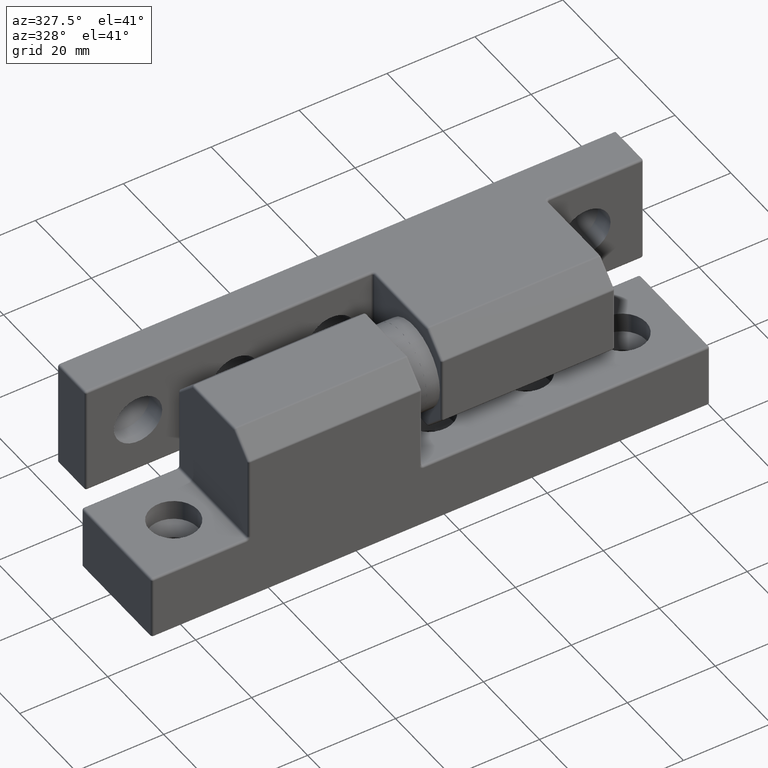
[diagram: clean part render]
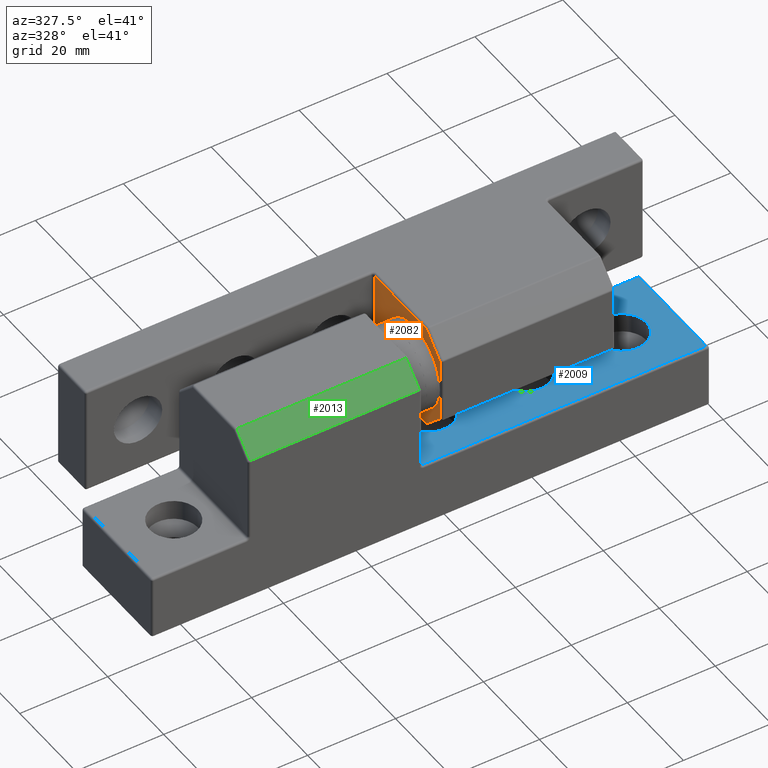
[diagram: same view with three faces highlighted in distinct colors, each labeled with its STEP entity id]
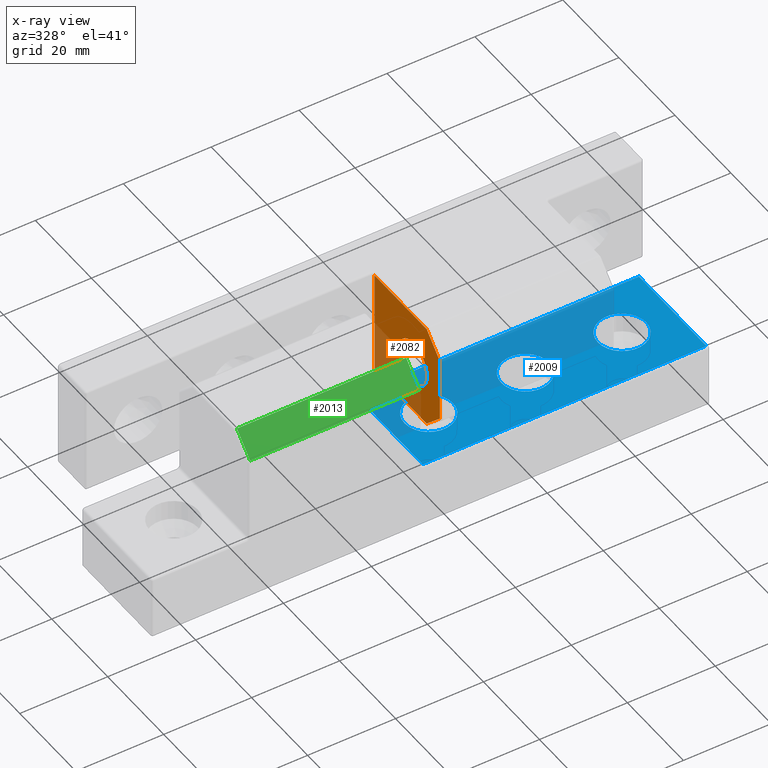
[diagram: x-ray of the same camera — body ghosted, the three highlighted faces saturated]
A machine part, auxiliary view with three faces highlighted in distinct colors.
The next image is the same camera in x-ray (body ghosted, the three faces saturated) — at least one of them is partly hidden behind the body in this view.
Their STEP definitions:

[orange] entity #2082 — the highlighted planar face has unit normal (-1, 0, -0).
#82=FACE_BOUND('',#744,.T.);
#123=PLANE('',#2379);
#210=LINE('',#3544,#322);
#219=LINE('',#3599,#331);
#228=LINE('',#3643,#340);
#230=LINE('',#3646,#342);
#238=LINE('',#3658,#350);
#248=LINE('',#3673,#360);
#322=VECTOR('',#2880,18.5928932188135);
#331=VECTOR('',#2943,24.);
#340=VECTOR('',#2996,18.5928932188134);
#342=VECTOR('',#3000,6.6568542494924);
#350=VECTOR('',#3016,14.5857864376269);
#360=VECTOR('',#3036,6.65685424949235);
#561=FACE_OUTER_BOUND('',#743,.T.);
#743=EDGE_LOOP('',(#1853,#1854,#1855,#1856,#1857,#1858));
#744=EDGE_LOOP('',(#1859));
#937=CIRCLE('',#2380,5.);
#1044=VERTEX_POINT('',#3483);
#1055=VERTEX_POINT('',#3510);
#1063=VERTEX_POINT('',#3533);
#1079=VERTEX_POINT('',#3580);
#1084=VERTEX_POINT('',#3591);
#1093=VERTEX_POINT('',#3621);
#1105=VERTEX_POINT('',#3701);
#1293=EDGE_CURVE('',#1044,#1063,#210,.T.);
#1320=EDGE_CURVE('',#1063,#1084,#219,.T.);
#1342=EDGE_CURVE('',#1084,#1093,#228,.T.);
#1344=EDGE_CURVE('',#1093,#1079,#230,.T.);
#1352=EDGE_CURVE('',#1079,#1055,#238,.T.);
#1362=EDGE_CURVE('',#1055,#1044,#248,.T.);
#1377=EDGE_CURVE('',#1105,#1105,#937,.T.);
#1853=ORIENTED_EDGE('',*,*,#1293,.F.);
#1854=ORIENTED_EDGE('',*,*,#1362,.F.);
#1855=ORIENTED_EDGE('',*,*,#1352,.F.);
#1856=ORIENTED_EDGE('',*,*,#1344,.F.);
#1857=ORIENTED_EDGE('',*,*,#1342,.F.);
#1858=ORIENTED_EDGE('',*,*,#1320,.F.);
#1859=ORIENTED_EDGE('',*,*,#1377,.T.);
#2082=ADVANCED_FACE('',(#561,#82),#123,.T.);
#2379=AXIS2_PLACEMENT_3D('',#3700,#3068,#3069);
#2380=AXIS2_PLACEMENT_3D('',#3702,#3070,#3071);
#2880=DIRECTION('',(0.,0.,-1.));
#2943=DIRECTION('',(3.5527136788005E-16,-1.,0.));
#2996=DIRECTION('',(0.,0.,1.));
#3000=DIRECTION('',(-2.51214793389404E-16,0.707106781186548,0.707106781186547));
#3016=DIRECTION('',(-3.5527136788005E-16,1.,0.));
#3036=DIRECTION('',(-2.51214793389404E-16,0.707106781186548,-0.707106781186548));
#3068=DIRECTION('center_axis',(1.,3.5527136788005E-16,0.));
#3069=DIRECTION('ref_axis',(0.,0.,-1.));
#3070=DIRECTION('center_axis',(-1.,-3.5527136788005E-16,0.));
#3071=DIRECTION('ref_axis',(0.,0.,1.));
#3483=CARTESIAN_POINT('',(-1.99999999999999,12.,28.7928932188135));
#3510=CARTESIAN_POINT('',(-1.99999999999999,7.29289321881347,33.5));
#3533=CARTESIAN_POINT('',(-1.99999999999999,12.,10.2));
#3544=CARTESIAN_POINT('',(-1.99999999999999,12.,10.4854565784329));
#3580=CARTESIAN_POINT('',(-1.99999999999998,-7.29289321881343,33.5));
#3591=CARTESIAN_POINT('',(-1.99999999999998,-12.,10.2));
#3599=CARTESIAN_POINT('',(-1.99999999999998,8.87308832615225E-15,10.2));
#3621=CARTESIAN_POINT('',(-1.99999999999998,-12.,28.7928932188134));
#3643=CARTESIAN_POINT('',(-1.99999999999998,-12.,10.4854565784329));
#3646=CARTESIAN_POINT('',(-1.99999999999998,-8.52871832019027,32.2641748986232));
#3658=CARTESIAN_POINT('',(-1.99999999999999,3.75000000000002,33.5));
#3673=CARTESIAN_POINT('',(-1.99999999999999,11.0287183201903,29.7641748986232));
#3700=CARTESIAN_POINT('Origin',(-1.99999999999998,2.06771654373149E-14,
20.9709131568657));
#3701=CARTESIAN_POINT('',(-1.99999999999998,-1.83758917935762E-14,19.));
#3702=CARTESIAN_POINT('Origin',(-1.99999999999998,-1.77635683940025E-14,
24.));

[blue] entity #2009 — the highlighted planar face has unit normal (0, 0, 1).
#53=FACE_BOUND('',#642,.T.);
#54=FACE_BOUND('',#643,.T.);
#55=FACE_BOUND('',#644,.T.);
#107=PLANE('',#2224);
#150=LINE('',#3240,#262);
#152=LINE('',#3252,#264);
#160=LINE('',#3306,#272);
#162=LINE('',#3309,#274);
#262=VECTOR('',#2504,24.);
#264=VECTOR('',#2518,64.5);
#272=VECTOR('',#2580,64.5);
#274=VECTOR('',#2584,24.);
#488=FACE_OUTER_BOUND('',#641,.T.);
#641=EDGE_LOOP('',(#1578,#1579,#1580,#1581));
#642=EDGE_LOOP('',(#1582));
#643=EDGE_LOOP('',(#1583));
#644=EDGE_LOOP('',(#1584));
#856=CIRCLE('',#2225,5.5);
#857=CIRCLE('',#2226,5.5);
#858=CIRCLE('',#2227,5.5);
#957=VERTEX_POINT('',#3181);
#976=VERTEX_POINT('',#3228);
#980=VERTEX_POINT('',#3243);
#1001=VERTEX_POINT('',#3300);
#1020=VERTEX_POINT('',#3405);
#1021=VERTEX_POINT('',#3407);
#1022=VERTEX_POINT('',#3409);
#1151=EDGE_CURVE('',#957,#976,#150,.T.);
#1157=EDGE_CURVE('',#980,#957,#152,.T.);
#1183=EDGE_CURVE('',#976,#1001,#160,.T.);
#1185=EDGE_CURVE('',#1001,#980,#162,.T.);
#1240=EDGE_CURVE('',#1020,#1020,#856,.T.);
#1241=EDGE_CURVE('',#1021,#1021,#857,.T.);
#1242=EDGE_CURVE('',#1022,#1022,#858,.T.);
#1578=ORIENTED_EDGE('',*,*,#1151,.F.);
#1579=ORIENTED_EDGE('',*,*,#1157,.F.);
#1580=ORIENTED_EDGE('',*,*,#1185,.F.);
#1581=ORIENTED_EDGE('',*,*,#1183,.F.);
#1582=ORIENTED_EDGE('',*,*,#1240,.T.);
#1583=ORIENTED_EDGE('',*,*,#1241,.T.);
#1584=ORIENTED_EDGE('',*,*,#1242,.T.);
#2009=ADVANCED_FACE('',(#488,#53,#54,#55),#107,.T.);
#2224=AXIS2_PLACEMENT_3D('',#3404,#2702,#2703);
#2225=AXIS2_PLACEMENT_3D('',#3406,#2704,#2705);
#2226=AXIS2_PLACEMENT_3D('',#3408,#2706,#2707);
#2227=AXIS2_PLACEMENT_3D('',#3410,#2708,#2709);
#2504=DIRECTION('',(7.105427357601E-16,-1.,0.));
#2518=DIRECTION('',(1.,1.3987061727561E-16,0.));
#2580=DIRECTION('',(-1.,0.,0.));
#2584=DIRECTION('',(-3.5527136788005E-16,1.,0.));
#2702=DIRECTION('center_axis',(0.,0.,1.));
#2703=DIRECTION('ref_axis',(1.,0.,0.));
#2704=DIRECTION('center_axis',(0.,0.,-1.));
#2705=DIRECTION('ref_axis',(1.,0.,0.));
#2706=DIRECTION('center_axis',(0.,0.,-1.));
#2707=DIRECTION('ref_axis',(1.,0.,0.));
#2708=DIRECTION('center_axis',(0.,0.,-1.));
#2709=DIRECTION('ref_axis',(1.,0.,0.));
#3181=CARTESIAN_POINT('',(63.,12.,14.5));
#3228=CARTESIAN_POINT('',(63.,-12.,14.5));
#3240=CARTESIAN_POINT('',(63.,-6.24999999999998,14.5));
#3243=CARTESIAN_POINT('',(-1.49999999999999,12.,14.5));
#3252=CARTESIAN_POINT('',(31.75,12.,14.5));
#3300=CARTESIAN_POINT('',(-1.49999999999998,-12.,14.5));
#3306=CARTESIAN_POINT('',(-31.75,-12.,14.5));
#3309=CARTESIAN_POINT('',(-1.49999999999998,8.67886781645846E-15,14.5));
#3404=CARTESIAN_POINT('Origin',(2.66453525910038E-14,-2.22044604925031E-15,
14.5));
#3405=CARTESIAN_POINT('',(35.,0.,14.5));
#3406=CARTESIAN_POINT('Origin',(29.5,0.,14.5));
#3407=CARTESIAN_POINT('',(13.,0.,14.5));
#3408=CARTESIAN_POINT('Origin',(7.50000000000002,0.,14.5));
#3409=CARTESIAN_POINT('',(57.,0.,14.5));
#3410=CARTESIAN_POINT('Origin',(51.5,0.,14.5));

[green] entity #2013 — the highlighted planar face has unit normal (-0, -0.7071, 0.7071).
#111=PLANE('',#2233);
#168=LINE('',#3348,#280);
#171=LINE('',#3352,#283);
#175=LINE('',#3358,#287);
#177=LINE('',#3361,#289);
#280=VECTOR('',#2630,38.5);
#283=VECTOR('',#2635,6.65685424949238);
#287=VECTOR('',#2643,6.65685424949239);
#289=VECTOR('',#2647,38.5);
#492=FACE_OUTER_BOUND('',#650,.T.);
#650=EDGE_LOOP('',(#1603,#1604,#1605,#1606));
#998=VERTEX_POINT('',#3293);
#1009=VERTEX_POINT('',#3327);
#1010=VERTEX_POINT('',#3331);
#1014=VERTEX_POINT('',#3339);
#1204=EDGE_CURVE('',#1010,#1014,#168,.T.);
#1207=EDGE_CURVE('',#1014,#1009,#171,.T.);
#1211=EDGE_CURVE('',#998,#1010,#175,.T.);
#1213=EDGE_CURVE('',#1009,#998,#177,.T.);
#1603=ORIENTED_EDGE('',*,*,#1204,.F.);
#1604=ORIENTED_EDGE('',*,*,#1211,.F.);
#1605=ORIENTED_EDGE('',*,*,#1213,.F.);
#1606=ORIENTED_EDGE('',*,*,#1207,.F.);
#2013=ADVANCED_FACE('',(#492),#111,.T.);
#2233=AXIS2_PLACEMENT_3D('',#3418,#2720,#2721);
#2630=DIRECTION('',(-1.,0.,3.55271367880049E-16));
#2635=DIRECTION('',(-2.51214793389405E-16,0.707106781186548,0.707106781186547));
#2643=DIRECTION('',(2.51214793389405E-16,-0.707106781186549,-0.707106781186547));
#2647=DIRECTION('',(1.,3.5527136788005E-16,0.));
#2720=DIRECTION('center_axis',(2.51214793389404E-16,-0.707106781186547,
0.707106781186548));
#2721=DIRECTION('ref_axis',(0.,-0.707106781186549,-0.707106781186547));
#3293=CARTESIAN_POINT('',(-2.49999999999998,-7.6464466094067,38.8535533905933));
#3327=CARTESIAN_POINT('',(-41.,-7.64644660940672,38.8535533905933));
#3331=CARTESIAN_POINT('',(-2.49999999999997,-12.3535533905933,34.1464466094067));
#3339=CARTESIAN_POINT('',(-41.,-12.3535533905933,34.1464466094067));
#3348=CARTESIAN_POINT('',(-52.5,-12.3535533905933,34.1464466094067));
#3352=CARTESIAN_POINT('',(-41.,-8.9079001903079,37.5920998096921));
#3358=CARTESIAN_POINT('',(-2.49999999999998,-8.90790019030789,37.5920998096921));
#3361=CARTESIAN_POINT('',(-41.5,-7.64644660940672,38.8535533905933));
#3418=CARTESIAN_POINT('Origin',(-41.5,-7.49999999999999,39.));